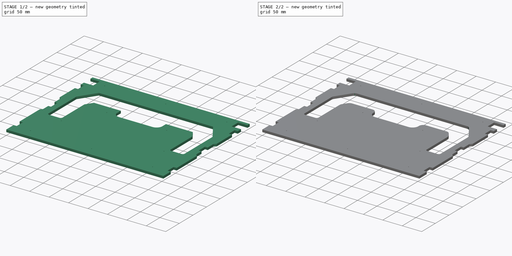
[diagram: build sequence overview — one tinted view per stage of 2, left to right]
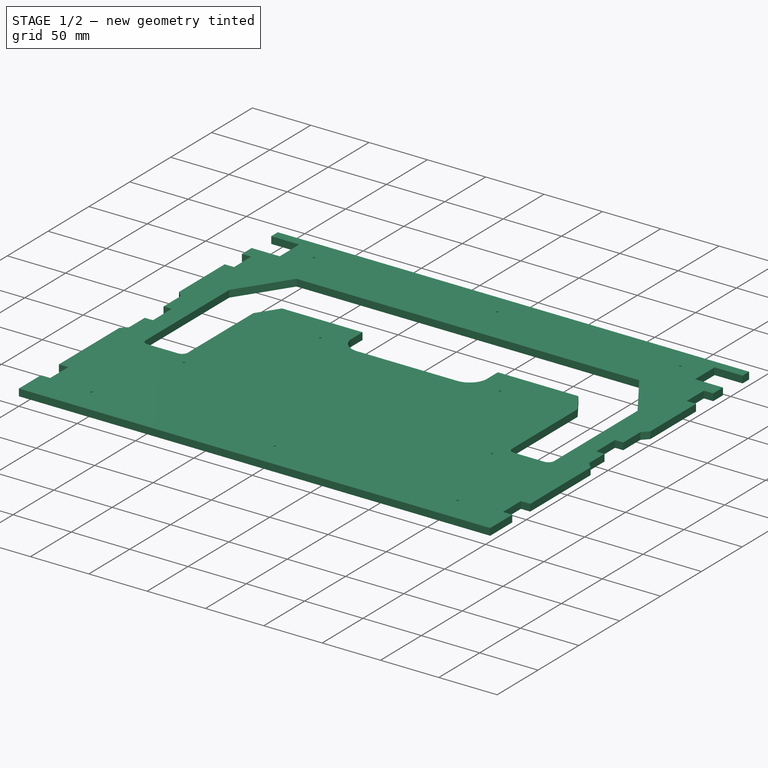
[diagram: stage 1 of 2 — iso view after this stage's code; geometry added in this stage tinted green]
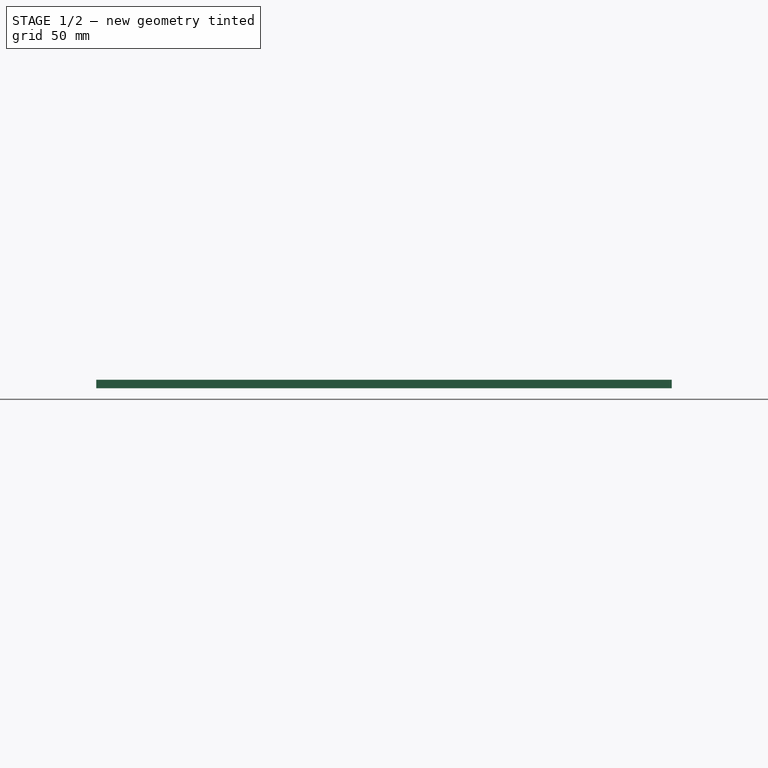
[diagram: stage 1 of 2 — front view after this stage's code; geometry added in this stage tinted green]
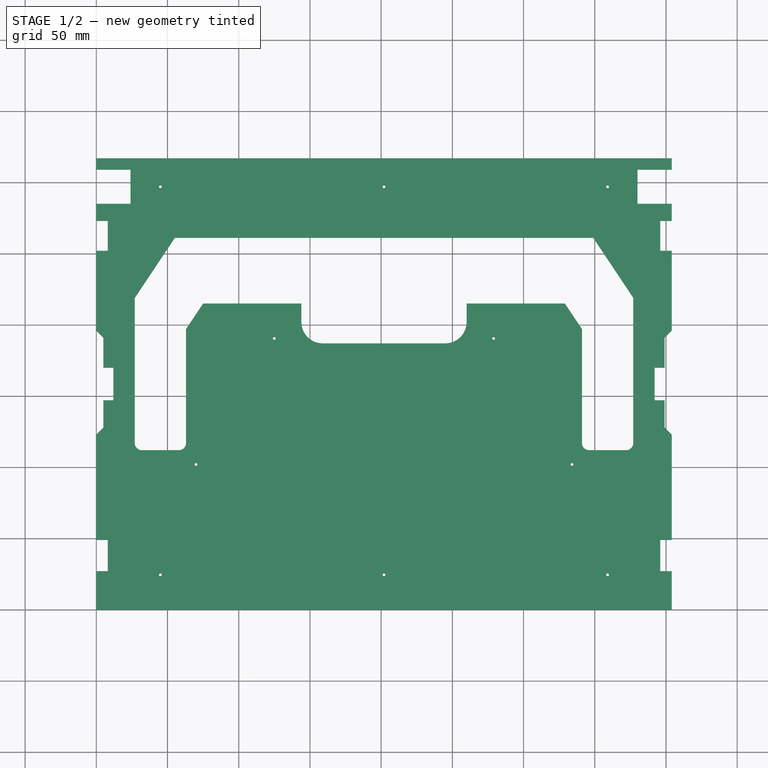
[diagram: stage 1 of 2 — top view after this stage's code; geometry added in this stage tinted green]
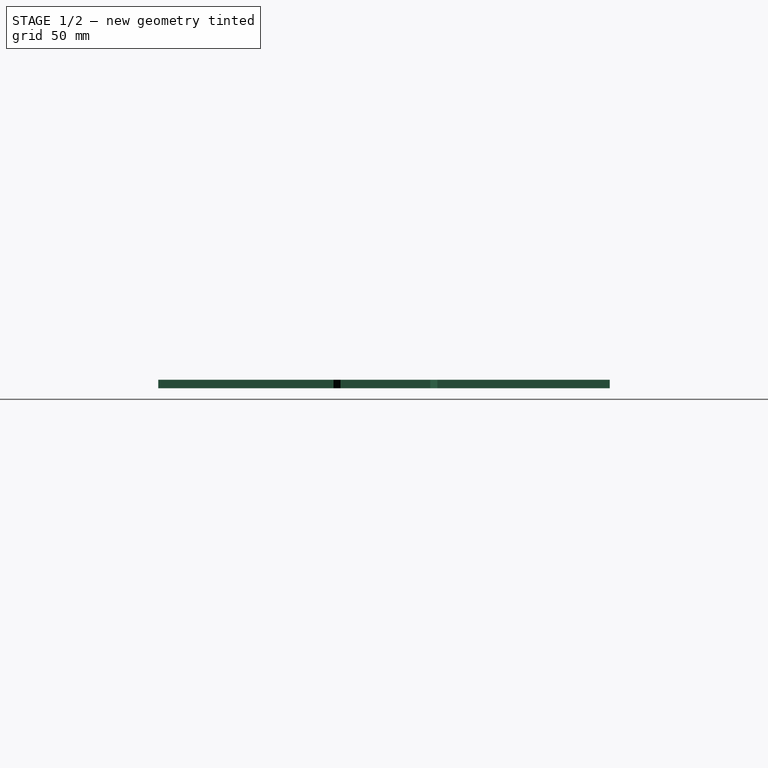
[diagram: stage 1 of 2 — right view after this stage's code; geometry added in this stage tinted green]
FCSTD DOCUMENT  (FreeCAD 0.17R13528 (Git))
Label: iNSERTO TAPA LBOXXFCStd2
License: All rights reserved
LicenseURL: http://es.wikipedia.org/wiki/Todos_los_derechos_reservados
objects: Sketcher::SketchObject×1, PartDesign::Pad×1, PartDesign::Mirrored×1, PartDesign::Fillet×1, PartDesign::Body×1, App::Part×1
note: 6 computed .brp shape members not serialized (recipe doc carries the construction recipe); baked Part::Feature solids carry a one-line shape summary decoded from their .brp

FEATURE [Sketcher::SketchObject] Sketch
  MapMode = 5
  Support = -> [XY_Plane001]
  sketch-geometry (58):
    g0: LineSegment [constr] StartX=0 StartY=0 StartZ=0 EndX=202 EndY=0 EndZ=0
    g1: LineSegment [constr] StartX=202 StartY=0 StartZ=0 EndX=202 EndY=23.5002 EndZ=0
    g2: LineSegment [constr] StartX=202 StartY=317 StartZ=0 EndX=0 EndY=317 EndZ=0
    g3: LineSegment [constr] StartX=0 StartY=317 StartZ=0 EndX=0 EndY=0 EndZ=0
    g4: LineSegment StartX=0 StartY=27 StartZ=0 EndX=8 EndY=27 EndZ=0
    g5: LineSegment StartX=0 StartY=0 StartZ=0 EndX=0 EndY=27 EndZ=0
    g6: LineSegment StartX=8 StartY=27 StartZ=0 EndX=8 EndY=49 EndZ=0
    g7: LineSegment StartX=8 StartY=49 StartZ=0 EndX=0 EndY=49 EndZ=0
    g8: LineSegment StartX=0 StartY=49 StartZ=0 EndX=0 EndY=123 EndZ=0
    g9: LineSegment [constr] StartX=0 StartY=123 StartZ=0 EndX=5 EndY=123 EndZ=0
    g10: LineSegment [constr] StartX=5 StartY=123 StartZ=0 EndX=5 EndY=128 EndZ=0
    g11: LineSegment StartX=0 StartY=123 StartZ=0 EndX=5 EndY=128 EndZ=0
    g12: LineSegment StartX=5 StartY=128 StartZ=0 EndX=5 EndY=147 EndZ=0
    g13: LineSegment StartX=5 StartY=147 StartZ=0 EndX=12 EndY=147 EndZ=0
    g14: LineSegment StartX=12 StartY=147 StartZ=0 EndX=12 EndY=170 EndZ=0
    g15: LineSegment StartX=12 StartY=170 StartZ=0 EndX=5 EndY=170 EndZ=0
    g16: LineSegment StartX=5 StartY=170 StartZ=0 EndX=5 EndY=191 EndZ=0
    g17: LineSegment [constr] StartX=5 StartY=191 StartZ=0 EndX=5 EndY=196 EndZ=0
    g18: LineSegment [constr] StartX=5 StartY=196 StartZ=0 EndX=0 EndY=196 EndZ=0
    g19: LineSegment StartX=5 StartY=191 StartZ=0 EndX=0 EndY=196 EndZ=0
    g20: LineSegment StartX=0 StartY=196 StartZ=0 EndX=0 EndY=252 EndZ=0
    g21: LineSegment StartX=0 StartY=252 StartZ=0 EndX=8 EndY=252 EndZ=0
    g22: LineSegment StartX=8 StartY=252 StartZ=0 EndX=8 EndY=273 EndZ=0
    g23: LineSegment StartX=8 StartY=273 StartZ=0 EndX=0 EndY=273 EndZ=0
    g24: LineSegment StartX=0 StartY=273 StartZ=0 EndX=0 EndY=285 EndZ=0
    g25: LineSegment StartX=0 StartY=285 StartZ=0 EndX=24 EndY=285 EndZ=0
    g26: LineSegment StartX=24 StartY=285 StartZ=0 EndX=24 EndY=309 EndZ=0
    g27: LineSegment StartX=24 StartY=309 StartZ=0 EndX=0 EndY=309 EndZ=0
    g28: LineSegment StartX=0 StartY=309 StartZ=0 EndX=0 EndY=317 EndZ=0
    g29: LineSegment StartX=0 StartY=317 StartZ=0 EndX=202 EndY=317 EndZ=0
    g30: LineSegment StartX=202 StartY=261.14 StartZ=0 EndX=55.0933 EndY=261.14 EndZ=0
    g31: LineSegment [constr] StartX=27 StartY=195.734 StartZ=0 EndX=0 EndY=195.734 EndZ=0
    g32: LineSegment StartX=27 StartY=219 StartZ=0 EndX=27 EndY=117 EndZ=0
    g33: LineSegment StartX=32 StartY=112 StartZ=0 EndX=58 EndY=112 EndZ=0
    g34: LineSegment StartX=27 StartY=219 StartZ=0 EndX=55.0933 EndY=261.14 EndZ=0
    g35: LineSegment StartX=63 StartY=117 StartZ=0 EndX=63 EndY=197.006 EndZ=0
    g36: LineSegment [constr] StartX=63 StartY=197.006 StartZ=0 EndX=75 EndY=197.006 EndZ=0
    g37: LineSegment [constr] StartX=75 StartY=197.006 StartZ=0 EndX=75 EndY=215.006 EndZ=0
    g38: LineSegment StartX=63 StartY=197.006 StartZ=0 EndX=75 EndY=215.006 EndZ=0
    g39: LineSegment [constr] StartX=61.7243 StartY=195.092 StartZ=0 EndX=26.6501 EndY=218.475 EndZ=0
    g40: LineSegment StartX=75 StartY=215.006 StartZ=0 EndX=144 EndY=215.006 EndZ=0
    g41: LineSegment StartX=144 StartY=215.006 StartZ=0 EndX=144 EndY=202 EndZ=0
    g42: LineSegment StartX=159 StartY=187 StartZ=0 EndX=202 EndY=187 EndZ=0
    g43: LineSegment StartX=202 StartY=187 StartZ=0 EndX=202 EndY=25.5002 EndZ=0
    g44: LineSegment StartX=0 StartY=0 StartZ=0 EndX=202 EndY=0 EndZ=0
    g45: ArcOfCircle CenterX=32 CenterY=117 CenterZ=0 NormalX=0 NormalY=0 NormalZ=1 AngleXU=0 Radius=5 StartAngle=3.14159 EndAngle=4.71239
    g46: ArcOfCircle CenterX=58 CenterY=117 CenterZ=0 NormalX=0 NormalY=0 NormalZ=1 AngleXU=0 Radius=5 StartAngle=4.71239 EndAngle=6.28319
    g47: ArcOfCircle CenterX=159 CenterY=202 CenterZ=0 NormalX=0 NormalY=0 NormalZ=1 AngleXU=0 Radius=15 StartAngle=3.14159 EndAngle=4.71239
    g48: Circle CenterX=45 CenterY=24.5 CenterZ=0 NormalX=0 NormalY=0 NormalZ=1 AngleXU=0 Radius=1
    g49: ArcOfCircle CenterX=202 CenterY=24.5002 CenterZ=0 NormalX=0 NormalY=0 NormalZ=1 AngleXU=0 Radius=1 StartAngle=1.57079 EndAngle=4.71239
    g50: LineSegment [constr] StartX=202 StartY=23.5002 StartZ=0 EndX=202 EndY=317 EndZ=0
    g51: LineSegment StartX=202 StartY=23.5002 StartZ=0 EndX=202 EndY=0 EndZ=0
    g52: Circle CenterX=45 CenterY=297 CenterZ=0 NormalX=0 NormalY=0 NormalZ=1 AngleXU=0 Radius=1
    g53: ArcOfCircle CenterX=202 CenterY=297 CenterZ=0 NormalX=0 NormalY=0 NormalZ=1 AngleXU=0 Radius=1 StartAngle=1.5708 EndAngle=4.71239
    g54: LineSegment StartX=202 StartY=261.14 StartZ=0 EndX=202 EndY=296 EndZ=0
    g55: LineSegment StartX=202 StartY=298 StartZ=0 EndX=202 EndY=317 EndZ=0
    g56: Circle CenterX=125 CenterY=190.5 CenterZ=0 NormalX=0 NormalY=0 NormalZ=1 AngleXU=0 Radius=1
    g57: Circle CenterX=70 CenterY=102 CenterZ=0 NormalX=0 NormalY=0 NormalZ=1 AngleXU=0 Radius=1
  constraints (162):
    c: Coincident(g0,g1)
    c: Coincident(g50,g2)
    c: Coincident(g2,g3)
    c: Coincident(g3,g0)
    c: Horizontal(g0)
    c: Horizontal(g2)
    c: Vertical(g1)
    c: Coincident(g0,g-1)
    c: DistanceX(g2) = -202
    c: DistanceY(g3) = -317
    c: PointOnObject(g4,g3)
    c: Horizontal(g4)
    c: DistanceX(g4) = 8
    c: Coincident(g5,g-1)
    c: Coincident(g5,g4)
    c: Vertical(g5)
    c: DistanceY(g5) = 27
    c: Coincident(g6,g4)
    c: Vertical(g6)
    c: DistanceY(g6) = 22
    c: PointOnObject(g7,g6)
    c: PointOnObject(g7,g3)
    c: Equal(g4,g7)
    c: Coincident(g7,g6)
    c: Coincident(g8,g7)
    c: PointOnObject(g8,g3)
    c: DistanceY(g-1,g8) = 123
    c: Coincident(g9,g8)
    c: Horizontal(g9)
    c: Coincident(g10,g9)
    c: Vertical(g10)
    c: DistanceX(g9) = 5
    c: DistanceY(g10) = 5
    c: Coincident(g11,g8)
    c: Coincident(g11,g10)
    c: Coincident(g12,g10)
    c: Vertical(g12)
    c: DistanceY(g-1,g12) = 147
    c: Coincident(g13,g12)
    c: Horizontal(g13)
    c: DistanceX(g13) = 7
    c: Coincident(g14,g13)
    c: Vertical(g14)
    c: DistanceY(g-1,g14) = 170
    c: Coincident(g15,g14)
    c: Horizontal(g15)
    c: DistanceX(g15) = -7
    c: Coincident(g16,g15)
    c: Vertical(g16)
    c: DistanceY(g16) = 21
    c: Coincident(g17,g16)
    c: Vertical(g17)
    c: Coincident(g18,g17)
    c: PointOnObject(g18,g3)
    c: Horizontal(g18)
    c: DistanceY(g17) = 5
    c: Coincident(g19,g16)
    c: Coincident(g19,g18)
    c: Coincident(g20,g18)
    c: PointOnObject(g20,g3)
    c: DistanceY(g-1,g20) = 252
    c: Horizontal(g21)
    c: DistanceX(g21) = 8
    c: Coincident(g21,g20)
    c: Coincident(g22,g21)
    c: Vertical(g22)
    c: DistanceY(g-1,g22) = 273
    c: Coincident(g23,g22)
    c: PointOnObject(g23,g3)
    c: Horizontal(g23)
    c: Coincident(g24,g23)
    c: PointOnObject(g24,g3)
    c: DistanceY(g-1,g24) = 285
    c: Coincident(g25,g24)
    c: Horizontal(g25)
    c: DistanceX(g25) = 24
    c: Coincident(g26,g25)
    c: Vertical(g26)
    c: DistanceY(g26) = 24
    c: Coincident(g27,g26)
    c: PointOnObject(g27,g3)
    c: Horizontal(g27)
    c: Coincident(g28,g27)
    c: Coincident(g28,g2)
    c: Coincident(g29,g2)
    c: Coincident(g29,g50)
    c: PointOnObject(g30,g1)
    c: Horizontal(g30)
    c: PointOnObject(g31,g3)
    c: Horizontal(g31)
    c: DistanceX(g31) = -27
    c: Vertical(g32)
    c: Horizontal(g33)
    c: PointOnObject(g31,g32)
    c: Coincident(g34,g32)
    c: Coincident(g34,g30)
    c: Vertical(g35)
    c: Coincident(g36,g35)
    c: Horizontal(g36)
    c: Coincident(g37,g36)
    c: Vertical(g37)
    c: DistanceY(g37) = 18
    c: DistanceX(g36) = 12
    c: Coincident(g38,g35)
    c: Coincident(g38,g37)
    c: PointOnObject(g39,g38)
    c: PointOnObject(g39,g34)
    c: Perpendicular(g34,g39)
    c: Coincident(g40,g37)
    c: Horizontal(g40)
    c: DistanceX(g40) = 69
    c: Coincident(g41,g40)
    c: Vertical(g41)
    c: PointOnObject(g42,g1)
    c: Horizontal(g42)
    c: DistanceY(g42,g0) = -187
    c: Coincident(g43,g42)
    c: Coincident(g51,g0)
    c: Coincident(g44,g-1)
    c: Coincident(g44,g0)
    c: Tangent(g32,g45) = -1.5708
    c: Tangent(g33,g45) = -1.5708
    c: Tangent(g33,g46) = -1.5708
    c: Tangent(g35,g46) = -1.5708
    c: Tangent(g41,g47) = -1.5708
    c: Tangent(g42,g47) = -1.5708
    c: Distance(g33,g0) = 112
    c: Equal(g45,g46)
    c: Radius(g47) = 15
    c: DistanceX(g42) = 43
    c: DistanceY(g40,g0) = -215.006
    c: Radius(g46) = 5
    c: Radius(g48) = 1
    c: DistanceY(g48,g0) = -24.5
    c: DistanceX(g-1,g48) = 45
    c: Radius(g49) = 1
    c: Coincident(g50,g49)
    c: Tangent(g1,g50)
    c: PointOnObject(g1,g49)
    c: PointOnObject(g51,g49)
    c: Tangent(g43,g51)
    c: PointOnObject(g43,g49)
    c: Radius(g52) = 1
    c: DistanceX(g52,g2) = -45
    c: DistanceY(g52,g2) = 20
    c: DistanceY(g53,g2) = 20
    c: Radius(g53) = 1
    c: Coincident(g54,g30)
    c: Coincident(g54,g53)
    c: Vertical(g54)
    c: Coincident(g55,g53)
    c: Coincident(g55,g2)
    c: Vertical(g55)
    c: DistanceY(g56,g0) = -190.5
    c: DistanceX(g-1,g56) = 125
    c: DistanceY(g-1,g57) = 102
    c: DistanceX(g-1,g57) = 70
    c: Equal(g48,g57)
    c: Equal(g57,g56)
    c: DistanceY(g32,g32) = 102
    c: DistanceY(g54,g54) = 34.86
    c: Parallel(g34,g38)
FEATURE [PartDesign::Pad] Pad
  Length = 6
  Length2 = 100
  Profile = -> Sketch
  Refine = true
  Type = 0
FEATURE [PartDesign::Mirrored] Mirrored
  BaseFeature = -> Pad
  MirrorPlane = -> Pad [Face11]
  Originals = -> [Pad]
  Refine = true
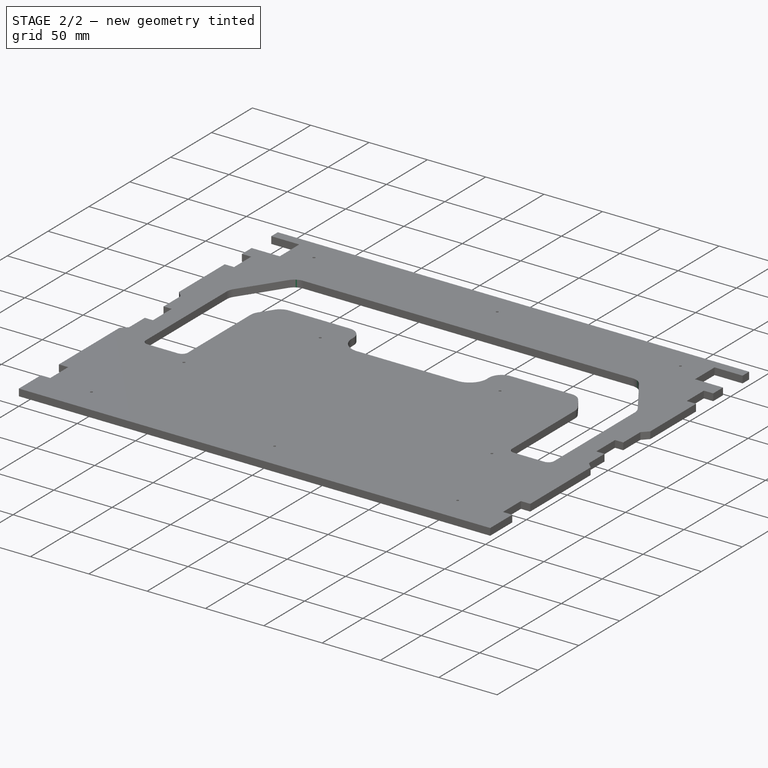
[diagram: stage 2 of 2 — iso view after this stage's code; geometry added in this stage tinted green]
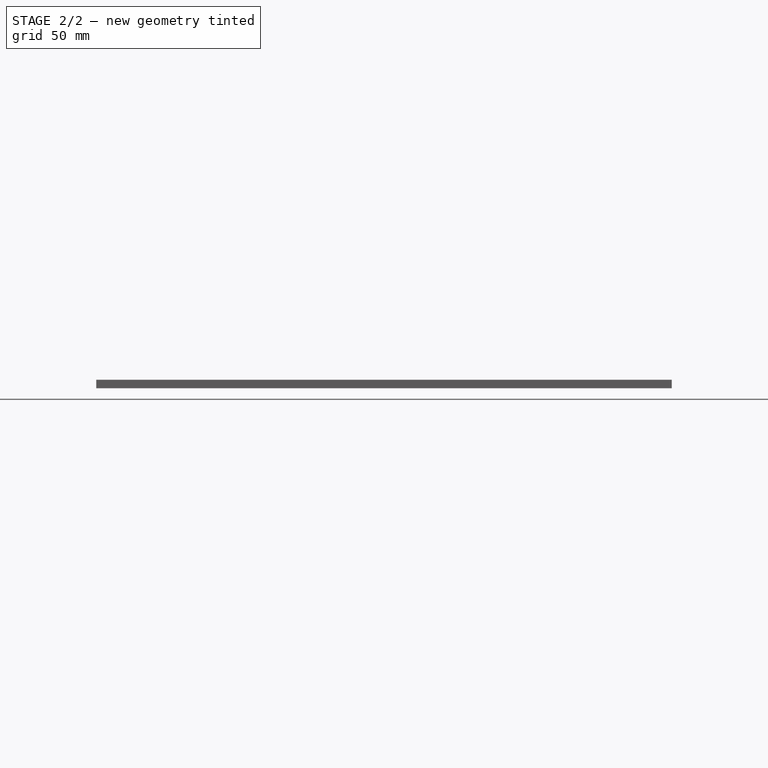
[diagram: stage 2 of 2 — front view after this stage's code; geometry added in this stage tinted green]
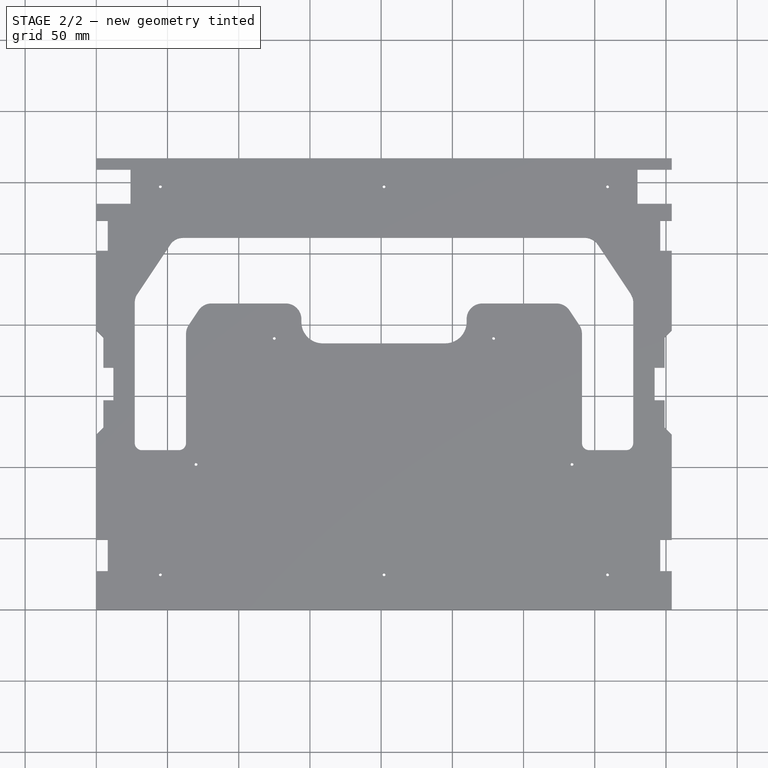
[diagram: stage 2 of 2 — top view after this stage's code; geometry added in this stage tinted green]
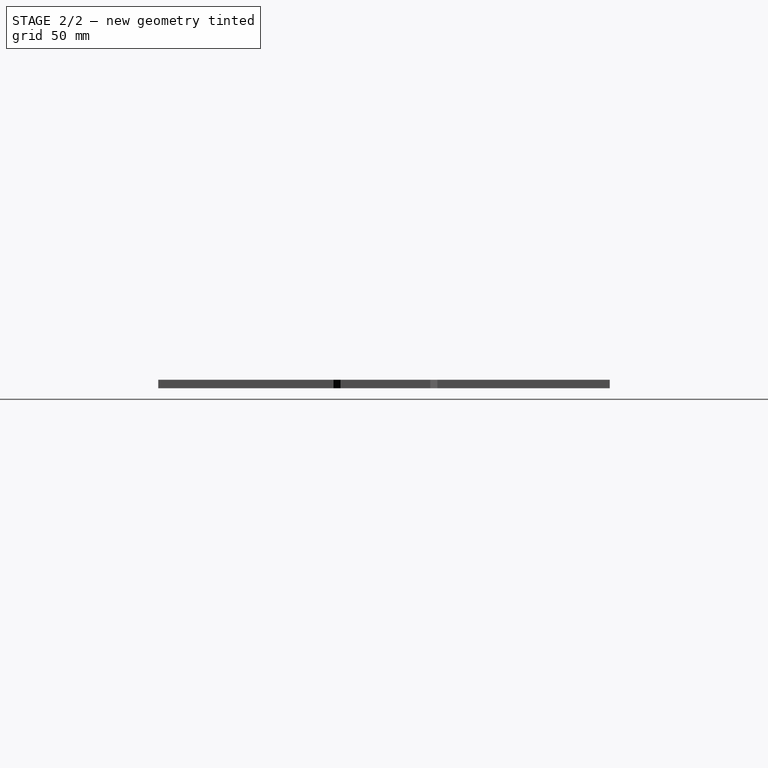
[diagram: stage 2 of 2 — right view after this stage's code; geometry added in this stage tinted green]
FEATURE [PartDesign::Fillet] Fillet
  Base = -> Mirrored [Edge165,Edge168,Edge180,Edge178,Edge176,Edge199,Edge205,Edge186,Edge195,Edge197]
  BaseFeature = -> Mirrored
  Radius = 11
FEATURE [PartDesign::Body] PadBody
  Group = -> [Sketch,Pad,Mirrored,Fillet]
  Origin = -> Origin001
  Tip = -> Fillet
FEATURE [App::Part] Part
  Group = -> [PadBody]
  License = CC BY 3.0
  LicenseURL = http://creativecommons.org/licenses/by/3.0/
  Origin = -> Origin
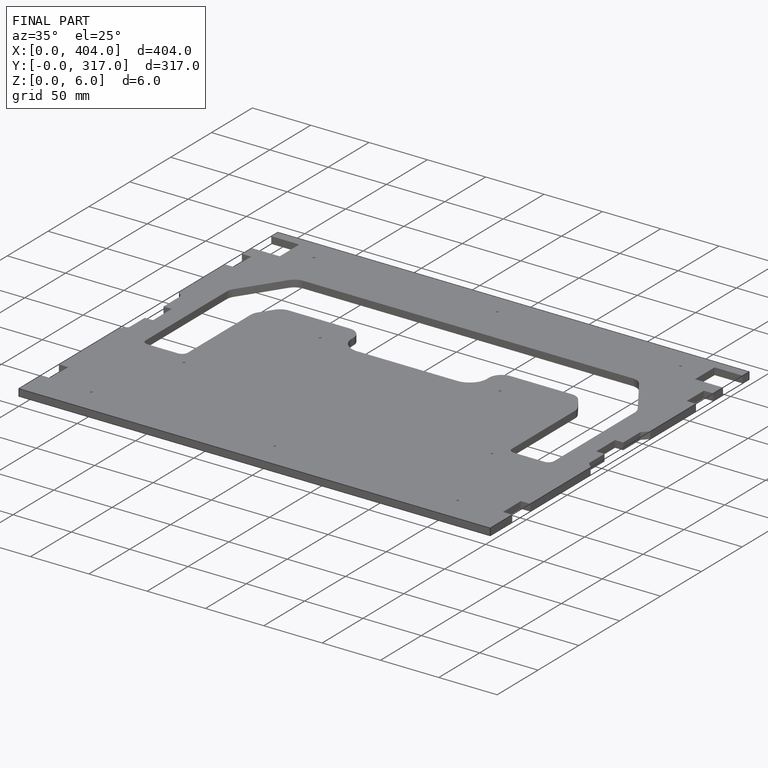
[diagram: finished part — iso view with bounding-box wireframe]
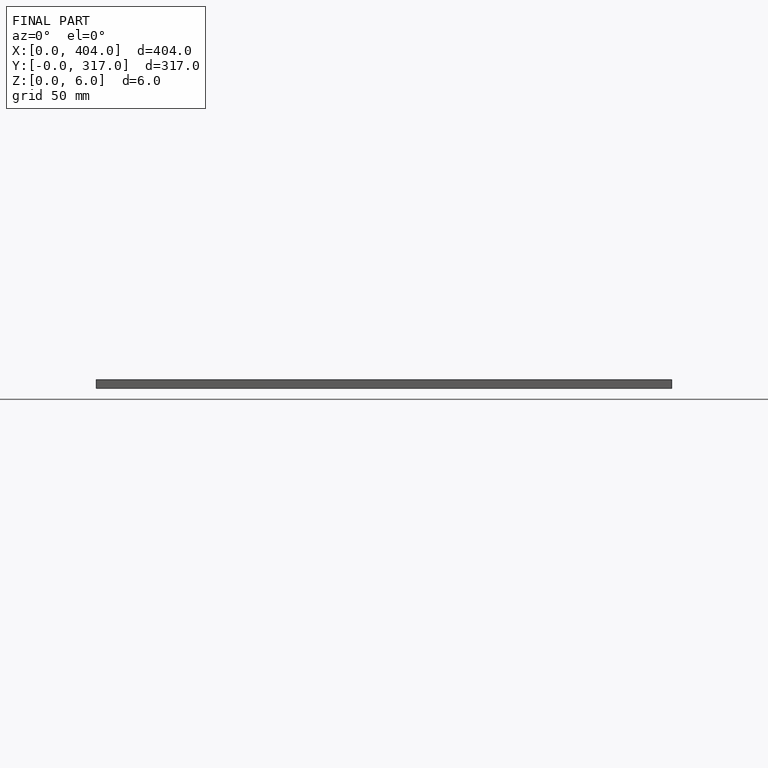
[diagram: finished part — front view with bounding-box wireframe]
